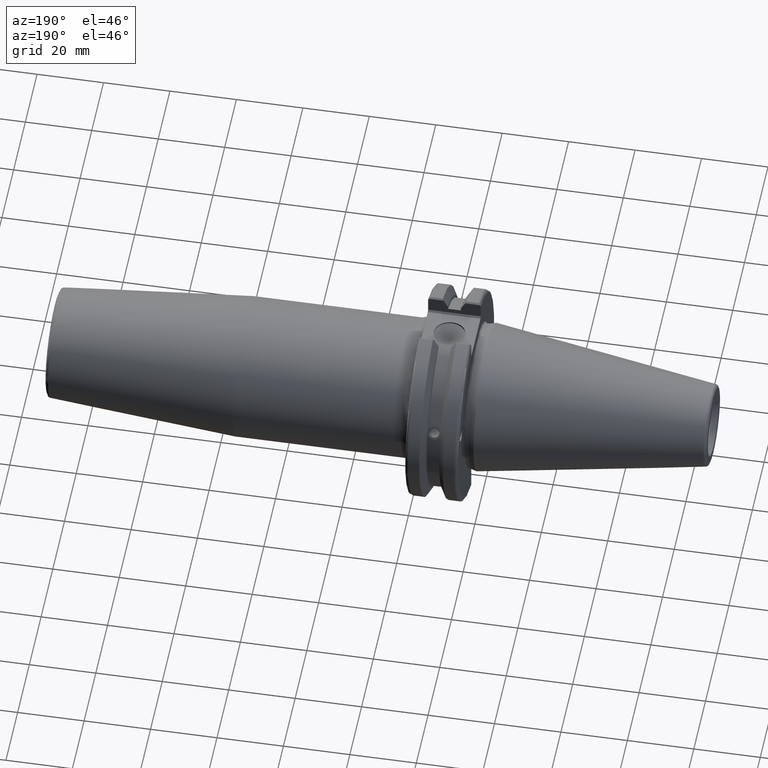
[diagram: clean part render]
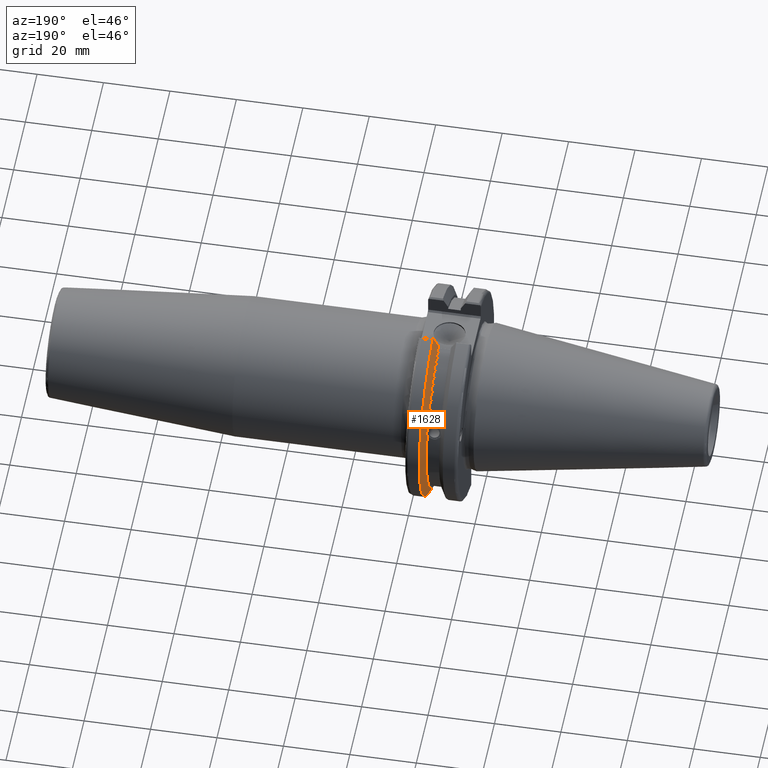
[diagram: same view with one face highlighted and labeled with its STEP entity id]
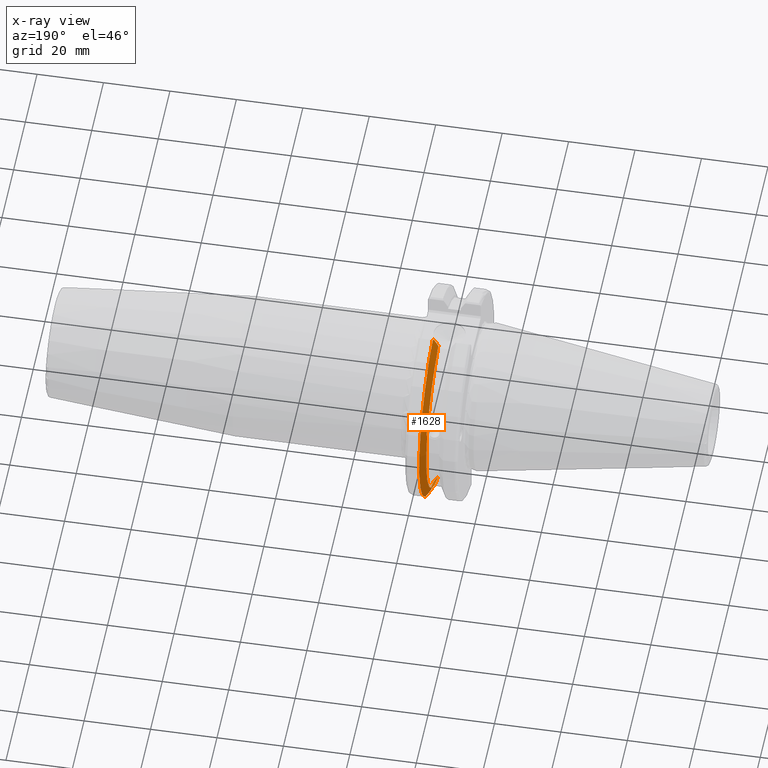
[diagram: x-ray of the same camera — body ghosted, the highlighted face saturated]
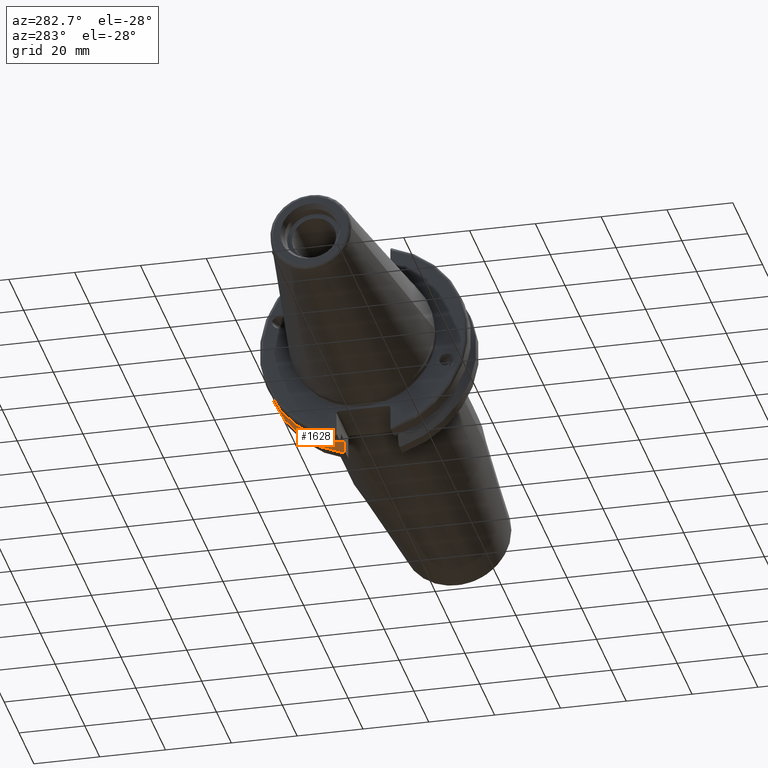
[diagram: same view with one face highlighted and labeled with its STEP entity id]
A machine part, auxiliary view. The second image highlights one B-rep face of the part: STEP entity #1628.
The next image is the same camera in x-ray: the body ghosted, the highlighted face saturated — about 0% of this face is hidden behind the body in this view.
A second angle (auxiliary view) of the same face is appended — the face is thin or edge-on in the first view.
In plain terms, the highlighted conical surface has half-angle 60 deg.
Its self-contained STEP definition (entity closure, byte-faithful):
#23=(
BOUNDED_CURVE()
B_SPLINE_CURVE(2,(#2878,#2879,#2880),.UNSPECIFIED.,.F.,.F.)
B_SPLINE_CURVE_WITH_KNOTS((3,3),(0.329353533631226,0.393258405001025),
 .UNSPECIFIED.)
CURVE()
GEOMETRIC_REPRESENTATION_ITEM()
RATIONAL_B_SPLINE_CURVE((1.00047644010577,1.00028444218285,1.))
REPRESENTATION_ITEM('')
);
#24=(
BOUNDED_CURVE()
B_SPLINE_CURVE(2,(#2894,#2895,#2896),.UNSPECIFIED.,.F.,.F.)
B_SPLINE_CURVE_WITH_KNOTS((3,3),(0.0550586467393769,0.331607789535852),
 .UNSPECIFIED.)
CURVE()
GEOMETRIC_REPRESENTATION_ITEM()
RATIONAL_B_SPLINE_CURVE((1.00031614444922,1.00095203903643,1.))
REPRESENTATION_ITEM('')
);
#29=(
BOUNDED_CURVE()
B_SPLINE_CURVE(2,(#3076,#3077,#3078),.UNSPECIFIED.,.F.,.F.)
B_SPLINE_CURVE_WITH_KNOTS((3,3),(0.,0.276549142795274),.UNSPECIFIED.)
CURVE()
GEOMETRIC_REPRESENTATION_ITEM()
RATIONAL_B_SPLINE_CURVE((1.,1.00095203903599,1.00031614444907))
REPRESENTATION_ITEM('')
);
#30=(
BOUNDED_CURVE()
B_SPLINE_CURVE(2,(#3093,#3094,#3095),.UNSPECIFIED.,.F.,.F.)
B_SPLINE_CURVE_WITH_KNOTS((3,3),(0.,0.0639048713675655),.UNSPECIFIED.)
CURVE()
GEOMETRIC_REPRESENTATION_ITEM()
RATIONAL_B_SPLINE_CURVE((1.,1.00028444218286,1.00047644010578))
REPRESENTATION_ITEM('')
);
#44=B_SPLINE_CURVE_WITH_KNOTS('',3,(#2673,#2674,#2675,#2676,#2677,#2678,
#2679,#2680),.UNSPECIFIED.,.F.,.F.,(4,2,2,4),(0.451995700189023,0.464547828547662,
0.504528771685167,0.544509714822673),.UNSPECIFIED.);
#48=B_SPLINE_CURVE_WITH_KNOTS('',3,(#2735,#2736,#2737,#2738,#2739,#2740,
#2741,#2742),.UNSPECIFIED.,.F.,.F.,(4,2,2,4),(0.544509714822673,0.584490657960178,
0.624471601097683,0.637023729456323),.UNSPECIFIED.);
#259=FACE_OUTER_BOUND('',#365,.T.);
#365=EDGE_LOOP('',(#1484,#1485,#1486,#1487,#1488,#1489,#1490,#1491,#1492));
#610=CIRCLE('',#1757,28.9593772964944);
#635=CIRCLE('',#1819,31.75);
#642=CIRCLE('',#1834,28.9593772964944);
#716=VERTEX_POINT('',#2670);
#717=VERTEX_POINT('',#2672);
#724=VERTEX_POINT('',#2733);
#733=VERTEX_POINT('',#2775);
#762=VERTEX_POINT('',#2875);
#763=VERTEX_POINT('',#2877);
#796=VERTEX_POINT('',#3073);
#797=VERTEX_POINT('',#3075);
#800=VERTEX_POINT('',#3091);
#905=EDGE_CURVE('',#717,#716,#44,.T.);
#913=EDGE_CURVE('',#716,#724,#48,.T.);
#925=EDGE_CURVE('',#733,#717,#610,.T.);
#962=EDGE_CURVE('',#762,#763,#23,.T.);
#968=EDGE_CURVE('',#762,#733,#24,.T.);
#1022=EDGE_CURVE('',#797,#796,#29,.T.);
#1030=EDGE_CURVE('',#800,#796,#30,.T.);
#1031=EDGE_CURVE('',#763,#800,#635,.T.);
#1041=EDGE_CURVE('',#724,#797,#642,.T.);
#1484=ORIENTED_EDGE('',*,*,#905,.T.);
#1485=ORIENTED_EDGE('',*,*,#913,.T.);
#1486=ORIENTED_EDGE('',*,*,#1041,.T.);
#1487=ORIENTED_EDGE('',*,*,#1022,.T.);
#1488=ORIENTED_EDGE('',*,*,#1030,.F.);
#1489=ORIENTED_EDGE('',*,*,#1031,.F.);
#1490=ORIENTED_EDGE('',*,*,#962,.F.);
#1491=ORIENTED_EDGE('',*,*,#968,.T.);
#1492=ORIENTED_EDGE('',*,*,#925,.T.);
#1543=CONICAL_SURFACE('',#1833,30.3546886482472,1.0471975511966);
#1628=ADVANCED_FACE('',(#259),#1543,.T.);
#1757=AXIS2_PLACEMENT_3D('',#2776,#2076,#2077);
#1819=AXIS2_PLACEMENT_3D('',#3097,#2256,#2257);
#1833=AXIS2_PLACEMENT_3D('',#3117,#2287,#2288);
#1834=AXIS2_PLACEMENT_3D('',#3118,#2289,#2290);
#2076=DIRECTION('center_axis',(1.,0.,0.));
#2077=DIRECTION('ref_axis',(0.,0.,-1.));
#2256=DIRECTION('center_axis',(1.,0.,0.));
#2257=DIRECTION('ref_axis',(0.,0.,-1.));
#2287=DIRECTION('center_axis',(1.,0.,0.));
#2288=DIRECTION('ref_axis',(0.,1.,0.));
#2289=DIRECTION('center_axis',(1.,0.,0.));
#2290=DIRECTION('ref_axis',(0.,0.,-1.));
#2670=CARTESIAN_POINT('',(13.2341,27.51401829017,10.0142836826778));
#2672=CARTESIAN_POINT('',(13.0491,27.4956274489925,9.09043478536244));
#2673=CARTESIAN_POINT('Ctrl Pts',(13.0491,27.4956274489925,9.09043478536245));
#2674=CARTESIAN_POINT('Ctrl Pts',(13.0632204071996,27.5087667900418,9.12860597076217));
#2675=CARTESIAN_POINT('Ctrl Pts',(13.0766929817857,27.5206055003513,9.16696618806877));
#2676=CARTESIAN_POINT('Ctrl Pts',(13.130081441159,27.5642934663232,9.32791534028656));
#2677=CARTESIAN_POINT('Ctrl Pts',(13.1682197084175,27.5867382255984,9.46717946402648));
#2678=CARTESIAN_POINT('Ctrl Pts',(13.2204106446058,27.5847569104122,9.74771639360672));
#2679=CARTESIAN_POINT('Ctrl Pts',(13.2341,27.559599249844,9.8890510252165));
#2680=CARTESIAN_POINT('Ctrl Pts',(13.2341,27.51401829017,10.0142836826778));
#2733=CARTESIAN_POINT('',(13.0491,26.9060914640648,10.7101715919071));
#2735=CARTESIAN_POINT('Ctrl Pts',(13.2341,27.51401829017,10.0142836826778));
#2736=CARTESIAN_POINT('Ctrl Pts',(13.2341,27.4684373304961,10.139516340139));
#2737=CARTESIAN_POINT('Ctrl Pts',(13.2204106446058,27.3968610665578,10.2639559818059));
#2738=CARTESIAN_POINT('Ctrl Pts',(13.1682197084175,27.2180531796526,10.4801333026531));
#2739=CARTESIAN_POINT('Ctrl Pts',(13.130081441159,27.1113422433189,10.5723885976054));
#2740=CARTESIAN_POINT('Ctrl Pts',(13.0766929817857,26.9744191989197,10.6676007180674));
#2741=CARTESIAN_POINT('Ctrl Pts',(13.0632204071996,26.9406927482839,10.6893765730703));
#2742=CARTESIAN_POINT('Ctrl Pts',(13.0491,26.9060914640648,10.7101715919071));
#2775=CARTESIAN_POINT('',(13.0491,8.19,-27.7771386827498));
#2776=CARTESIAN_POINT('Origin',(13.0491,0.,0.));
#2875=CARTESIAN_POINT('',(14.3815146964874,8.19,-30.1755016258903));
#2877=CARTESIAN_POINT('',(14.6602667690756,8.67204822802685,-30.5427254764662));
#2878=CARTESIAN_POINT('Ctrl Pts',(14.3815146964874,8.19,-30.1755016258903));
#2879=CARTESIAN_POINT('Ctrl Pts',(14.5192085187884,8.42917748263464,-30.3577067892692));
#2880=CARTESIAN_POINT('Ctrl Pts',(14.6602667690756,8.67204822802686,-30.5427254764662));
#2894=CARTESIAN_POINT('Ctrl Pts',(14.3815146964874,8.18999999999999,-30.1755016258903));
#2895=CARTESIAN_POINT('Ctrl Pts',(13.687736438474,8.19,-28.9303689539668));
#2896=CARTESIAN_POINT('Ctrl Pts',(13.0491,8.19,-27.7771386827498));
#3073=CARTESIAN_POINT('',(14.3815146964874,8.19,30.1755016258903));
#3075=CARTESIAN_POINT('',(13.0491,8.19,27.7771386827498));
#3076=CARTESIAN_POINT('Ctrl Pts',(13.0491,8.19,27.7771386827498));
#3077=CARTESIAN_POINT('Ctrl Pts',(13.687736438489,8.19,28.9303689539938));
#3078=CARTESIAN_POINT('Ctrl Pts',(14.3815146964874,8.19,30.1755016258903));
#3091=CARTESIAN_POINT('',(14.6602667690756,8.67204822802685,30.5427254764662));
#3093=CARTESIAN_POINT('Ctrl Pts',(14.6602667690756,8.67204822802687,30.5427254764662));
#3094=CARTESIAN_POINT('Ctrl Pts',(14.5192085187837,8.42917748262644,30.357706789263));
#3095=CARTESIAN_POINT('Ctrl Pts',(14.3815146964874,8.19,30.1755016258903));
#3097=CARTESIAN_POINT('Origin',(14.6602667690756,0.,0.));
#3117=CARTESIAN_POINT('Origin',(13.8546833845378,0.,0.));
#3118=CARTESIAN_POINT('Origin',(13.0491,0.,0.));